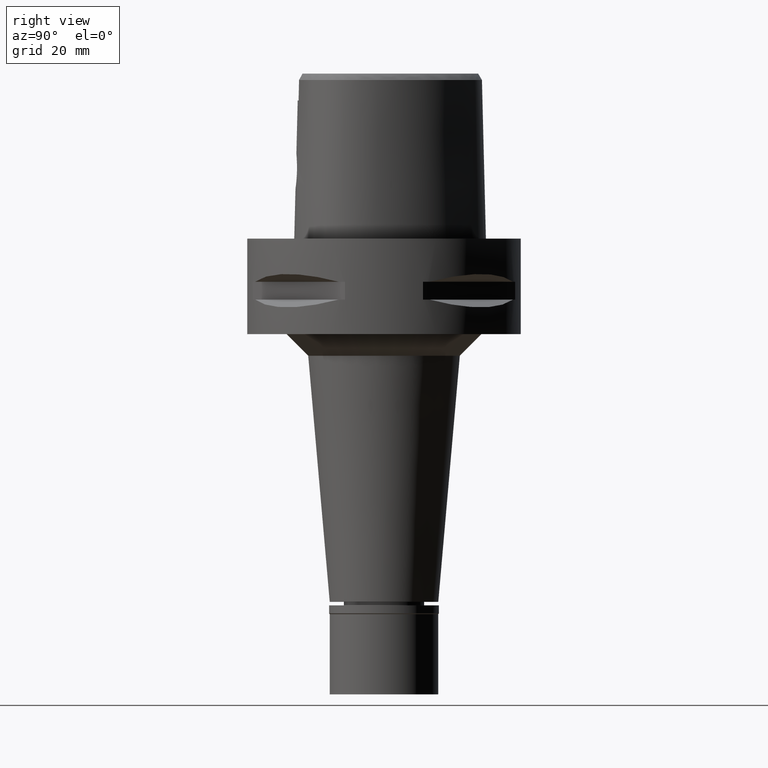
[diagram: clean part render]
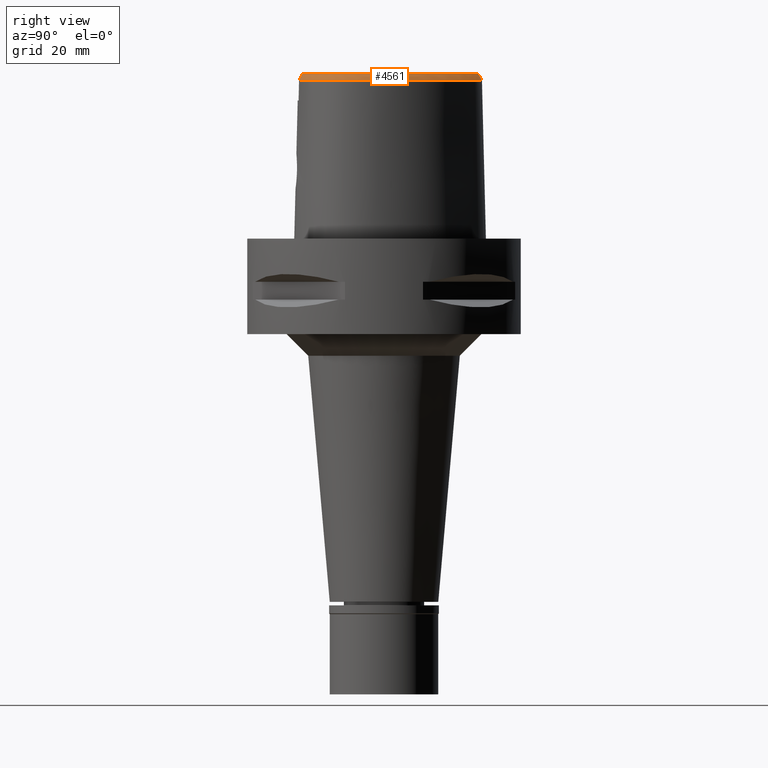
[diagram: same view with one face highlighted and labeled with its STEP entity id]
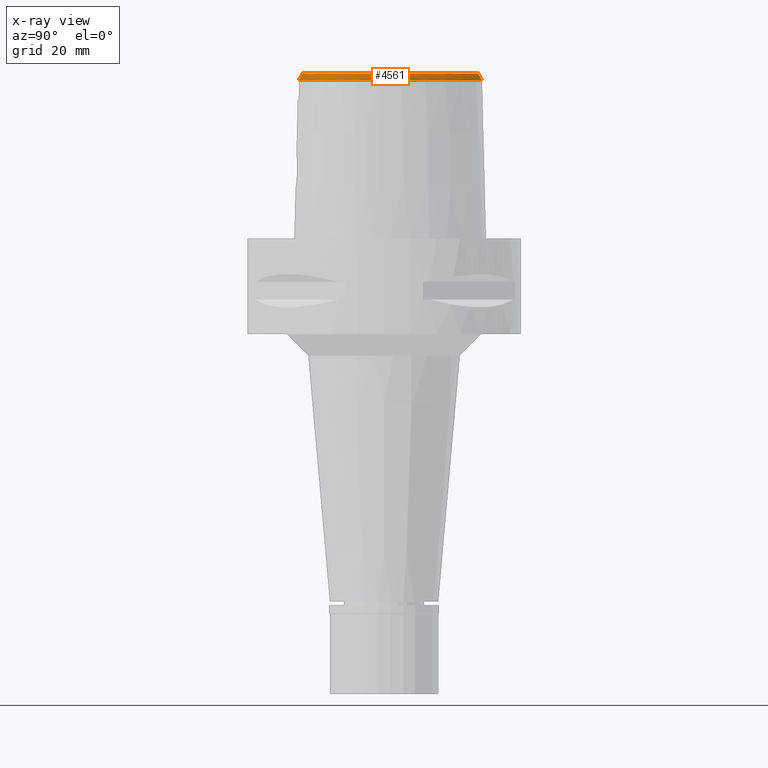
[diagram: x-ray of the same camera — body ghosted, the highlighted face saturated]
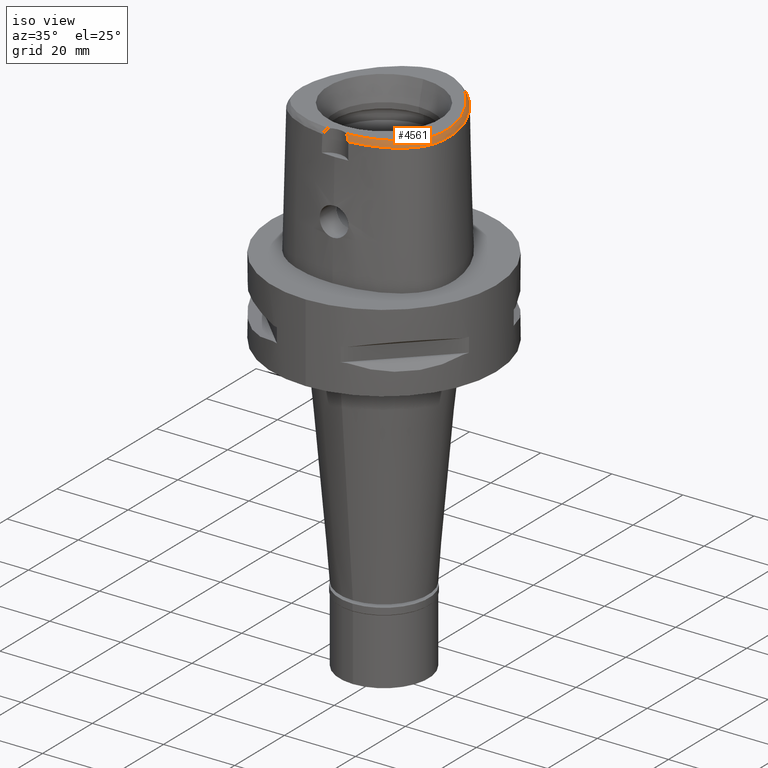
[diagram: same view with one face highlighted and labeled with its STEP entity id]
A machine part, right view. The second image highlights one B-rep face of the part: STEP entity #4561.
The next image is the same camera in x-ray: the body ghosted, the highlighted face saturated — about 0% of this face is hidden behind the body in this view.
A second angle (iso view) of the same face is appended — the face is thin or edge-on in the first view.
In plain terms, the highlighted face is a freeform B-spline surface patch.
Its self-contained STEP definition (entity closure, byte-faithful):
#6 = CARTESIAN_POINT ( 'NONE',  ( 2.974842851752000250, 22.29141342691000105, 36.35241491491999710 ) ) ;
#17 = CARTESIAN_POINT ( 'NONE',  ( 20.23574676372999903, -7.868662442845999472, 37.56374709648999755 ) ) ;
#31 = CARTESIAN_POINT ( 'NONE',  ( 2.198748266315000421, 22.46134228318000225, 36.35241431072999774 ) ) ;
#41 = CARTESIAN_POINT ( 'NONE',  ( 20.93286452998000158, -8.037445738110999827, 36.35241419415999786 ) ) ;
#66 = CARTESIAN_POINT ( 'NONE',  ( 19.19515183040999773, -9.826904119165998708, 38.16941351452000220 ) ) ;
#90 = CARTESIAN_POINT ( 'NONE',  ( 10.15538781006311098, 18.47129526703114522, 36.52186680739941949 ) ) ;
#92 = CARTESIAN_POINT ( 'NONE',  ( 20.37312828463000258, -8.721874436320998569, 36.95808071120999472 ) ) ;
#112 = CARTESIAN_POINT ( 'NONE',  ( 17.90324024157837357, -13.53935104436289372, 36.52186680739941949 ) ) ;
#114 = CARTESIAN_POINT ( 'NONE',  ( 20.17966348624999995, -6.167729458715000668, 38.16941348641999809 ) ) ;
#141 = CARTESIAN_POINT ( 'NONE',  ( 8.732941617278999757, 18.65337847549000116, 37.56374699025000297 ) ) ;
#168 = CARTESIAN_POINT ( 'NONE',  ( 19.50941057958999991, 2.946715820147000287, 37.56374768472000625 ) ) ;
#175 = CARTESIAN_POINT ( 'NONE',  ( 2.065905809703999729, -18.72351597435000059, 38.16941344133000058 ) ) ;
#199 = CARTESIAN_POINT ( 'NONE',  ( 2.087951870860000003, -19.08125731625999677, 37.56374737029999977 ) ) ;
#224 = CARTESIAN_POINT ( 'NONE',  ( 2.269381578122999787, -18.71097469369999899, 38.16941343586000102 ) ) ;
#253 = CARTESIAN_POINT ( 'NONE',  ( 19.26272899268332495, 2.870227893749907278, 37.99999999999666045 ) ) ;
#264 = CARTESIAN_POINT ( 'NONE',  ( 7.997372503649000208, 19.60781613908000054, 36.95808075406999649 ) ) ;
#274 = CARTESIAN_POINT ( 'NONE',  ( 2.635221399208999671, -18.68505318431000006, 38.16941343052999969 ) ) ;
#275 = CARTESIAN_POINT ( 'NONE',  ( 19.98468477322884951, -7.807876343103253625, 37.99999999999519673 ) ) ;
#288 = CARTESIAN_POINT ( 'NONE',  ( 16.79760643951000176, 8.471324335445000742, 38.16941349421999519 ) ) ;
#300 = CARTESIAN_POINT ( 'NONE',  ( 3.518748333297999853, -18.60775588494999866, 38.16941344237999800 ) ) ;
#314 = CARTESIAN_POINT ( 'NONE',  ( 15.46170414963999917, 11.40058555340000090, 37.56374739870999946 ) ) ;
#322 = CARTESIAN_POINT ( 'NONE',  ( 2.663393268739999709, -19.04238078869999740, 37.56374739809000118 ) ) ;
#344 = CARTESIAN_POINT ( 'NONE',  ( 17.62527934276999986, -13.91671344115000153, 36.35241423360999846 ) ) ;
#370 = CARTESIAN_POINT ( 'NONE',  ( 14.16129752551999843, -15.25738823900000085, 38.16941348265999778 ) ) ;
#387 = CARTESIAN_POINT ( 'NONE',  ( 3.451992890747000331, 21.03906640685000085, 38.16941348706999548 ) ) ;
#401 = CARTESIAN_POINT ( 'NONE',  ( 20.91868174871000008, -2.114874987633000192, 36.95808044620000743 ) ) ;
#413 = CARTESIAN_POINT ( 'NONE',  ( -0.5985553733182999991, 21.57070269564000142, 38.16941358703000020 ) ) ;
#422 = CARTESIAN_POINT ( 'NONE',  ( 19.45597212414000055, -9.191065456482000684, 38.16941348683000257 ) ) ;
#434 = CARTESIAN_POINT ( 'NONE',  ( 1.401793166265999702, 22.22299312404000204, 36.95808035355999976 ) ) ;
#446 = CARTESIAN_POINT ( 'NONE',  ( 21.32871516739867701, -4.105831245034494259, 36.52186680739941949 ) ) ;
#448 = CARTESIAN_POINT ( 'NONE',  ( 19.86089169675999955, -10.91966610638999846, 36.35241402981999670 ) ) ;
#476 = CARTESIAN_POINT ( 'NONE',  ( 18.82552655371999961, -11.93799700846000000, 36.95808054173999579 ) ) ;
#500 = CARTESIAN_POINT ( 'NONE',  ( 20.71603420689000075, -8.826925708826001582, 36.35241429835000559 ) ) ;
#526 = CARTESIAN_POINT ( 'NONE',  ( 14.84076497483999901, 12.91328036578999949, 36.95808118665999586 ) ) ;
#547 = B_SPLINE_CURVE_WITH_KNOTS ( 'NONE', 3,
 ( #2004, #4006, #2033, #2055, #3593, #90, #4359, #3206, #858, #2386, #446, #552, #3184, #3158, #4032, #2105, #112, #3262, #2848, #4732, #2413, #4413, #912 ),
 .UNSPECIFIED., .F., .F.,
 ( 4, 1, 1, 1, 1, 1, 1, 1, 1, 1, 1, 1, 1, 1, 1, 1, 1, 1, 1, 1, 4 ),
 ( 0.0000000000000000000, 0.04382683003322194321, 0.08765366006602301474, 0.1314804900989294256, 0.1753073201318358088, 0.2629609801974380767, 0.3506146402631456493, 0.4382683003288531665, 0.5259219603945607391, 0.5697487904274670667, 0.6135756204602682562, 0.6574024504930694457, 0.6793158655094699849, 0.7012292805259757733, 0.7231426955423763125, 0.7450561105587768518, 0.7888829405916832904, 0.8327097706245897291, 0.8765366006573908075, 0.9641902607230773414, 1.000000000000000000 ),
 .UNSPECIFIED. ) ;
#552 = CARTESIAN_POINT ( 'NONE',  ( 21.14970177531404971, -6.717195943319461904, 36.52186680739941949 ) ) ;
#553 = CARTESIAN_POINT ( 'NONE',  ( 12.36653905210999937, 14.82427720241999936, 38.16941344374999545 ) ) ;
#563 = CARTESIAN_POINT ( 'NONE',  ( 3.014775775910999656, -19.00418777225999989, 37.57642508973999895 ) ) ;
#585 = CARTESIAN_POINT ( 'NONE',  ( 3.334361733693000041, -19.26626899416000072, 37.08490021722000307 ) ) ;
#608 = CARTESIAN_POINT ( 'NONE',  ( 2.132043993171000018, -19.79674000006999890, 36.35241522825000260 ) ) ;
#609 = CARTESIAN_POINT ( 'NONE',  ( 0.2185816947241264185, 21.68728795389688813, 38.00000000000073186 ) ) ;
#653 = CARTESIAN_POINT ( 'NONE',  ( 15.76031682222999919, 11.59905775982999998, 36.95808136714000369 ) ) ;
#662 = CARTESIAN_POINT ( 'NONE',  ( 3.632041410732000042, -19.67722132647000066, 36.35241521796000086 ) ) ;
#663 = CARTESIAN_POINT ( 'NONE',  ( 20.15982952132096173, -1.007721426051856994, 38.00000000000159162 ) ) ;
#676 = CARTESIAN_POINT ( 'NONE',  ( 19.37553402254999924, 4.468835533538999094, 36.95808033534000003 ) ) ;
#687 = CARTESIAN_POINT ( 'NONE',  ( 10.50200809265000146, -18.16413051794999944, 36.35241692327999630 ) ) ;
#688 = CARTESIAN_POINT ( 'NONE',  ( 20.38292172607745201, -3.276278498261031569, 37.99999999999698730 ) ) ;
#700 = CARTESIAN_POINT ( 'NONE',  ( 17.51320334548999824, 7.056729789478000114, 38.16941342730000031 ) ) ;
#712 = CARTESIAN_POINT ( 'NONE',  ( 17.12038549522000253, -13.40725297164999930, 37.56374710693000196 ) ) ;
#714 = CARTESIAN_POINT ( 'NONE',  ( 10.48999540691348287, 16.86597469869753496, 37.99999999999941735 ) ) ;
#727 = CARTESIAN_POINT ( 'NONE',  ( -0.6187441997410000338, 21.92853279375000142, 37.56374699506000070 ) ) ;
#738 = CARTESIAN_POINT ( 'NONE',  ( 11.42172981814000110, -17.04453059356999844, 37.56374706089999904 ) ) ;
#751 = CARTESIAN_POINT ( 'NONE',  ( 0.02237540582047000196, 21.59312350621999954, 38.16941350025999924 ) ) ;
#752 = CARTESIAN_POINT ( 'NONE',  ( 3.637738219117000238, -19.56971420299000286, 36.52185956443999970 ) ) ;
#761 = CARTESIAN_POINT ( 'NONE',  ( 17.00744580197999767, -14.49462320075000221, 36.35241413026000146 ) ) ;
#775 = CARTESIAN_POINT ( 'NONE',  ( 6.013209298940999759, 20.36126075105999789, 37.56374730083000202 ) ) ;
#787 = CARTESIAN_POINT ( 'NONE',  ( 20.64094826198999755, -3.264640632160000333, 37.56374712186000409 ) ) ;
#805 = CARTESIAN_POINT ( 'NONE',  ( 0.02372649223501999832, 22.31039325036000065, 36.95808093682000361 ) ) ;
#816 = CARTESIAN_POINT ( 'NONE',  ( 18.89816146815000053, -11.16761073274999916, 37.56374718448999772 ) ) ;
#827 = CARTESIAN_POINT ( 'NONE',  ( 5.164914911368001071, 20.76969461227999858, 37.56374726397999808 ) ) ;
#836 = CARTESIAN_POINT ( 'NONE',  ( 20.54588661210999945, 0.3495157659289999663, 36.95808296599000187 ) ) ;
#858 = CARTESIAN_POINT ( 'NONE',  ( 19.88562079789042514, 4.345879946636847180, 36.52186680739941949 ) ) ;
#860 = CARTESIAN_POINT ( 'NONE',  ( 20.12779444172999987, -9.442371789440999308, 36.95808101937999623 ) ) ;
#872 = EDGE_CURVE ( 'NONE', #3339, #4923, #3026, .T. ) ;
#890 = CARTESIAN_POINT ( 'NONE',  ( 20.76973129015000197, -0.9153422451423999240, 36.95808105719000025 ) ) ;
#912 = CARTESIAN_POINT ( 'NONE',  ( 3.637738219117000238, -19.56971420299000286, 36.52185956443999970 ) ) ;
#913 = CARTESIAN_POINT ( 'NONE',  ( 9.917989564107999811, 18.18050054662999671, 36.95808170605999976 ) ) ;
#940 = CARTESIAN_POINT ( 'NONE',  ( 17.11361895382999876, 8.640725359465998068, 37.56374723407999738 ) ) ;
#996 = CARTESIAN_POINT ( 'NONE',  ( 16.36283630828387459, -13.76236604535341890, 37.99999999999447908 ) ) ;
#1018 = CARTESIAN_POINT ( 'NONE',  ( 5.894487344450284105, 20.13186406532522454, 37.99999999999013767 ) ) ;
#1030 = CARTESIAN_POINT ( 'NONE',  ( 19.54673487616999594, 1.497096046667000246, 38.16941309245999747 ) ) ;
#1045 = CARTESIAN_POINT ( 'NONE',  ( 11.46587147800505235, 15.92717600803452882, 37.99999999999688072 ) ) ;
#1064 = CARTESIAN_POINT ( 'NONE',  ( 11.64961156618999993, 16.10867751014999882, 37.56374814839000464 ) ) ;
#1073 = CARTESIAN_POINT ( 'NONE',  ( 15.15359882462999863, -15.03603512539999976, 37.56374738893000398 ) ) ;
#1075 = CARTESIAN_POINT ( 'NONE',  ( 12.44125753246675359, 14.89118158853383989, 37.99999999999811706 ) ) ;
#1087 = CARTESIAN_POINT ( 'NONE',  ( 18.81125986178999909, 5.911183584566000349, 36.95808094008000211 ) ) ;
#1099 = CARTESIAN_POINT ( 'NONE',  ( 15.87993102237000187, -14.49961560620000078, 37.56374716796000257 ) ) ;
#1100 = CARTESIAN_POINT ( 'NONE',  ( 17.91165267839327768, -12.13575389397936100, 38.00000000000002132 ) ) ;
#1111 = CARTESIAN_POINT ( 'NONE',  ( 6.891440295765999480, 19.87656040022000070, 37.56374713218000494 ) ) ;
#1123 = CARTESIAN_POINT ( 'NONE',  ( 14.53685643401999883, -15.86840201252000249, 36.95808104500999747 ) ) ;
#1134 = CARTESIAN_POINT ( 'NONE',  ( 2.682287482605000051, -18.78036330228999873, 38.00000000000000000 ) ) ;
#1138 = CARTESIAN_POINT ( 'NONE',  ( 5.848383106901000161, 20.04278063221000039, 38.16941346828999571 ) ) ;
#1151 = CARTESIAN_POINT ( 'NONE',  ( 14.72463588826999903, -16.17390889927000330, 36.35241482618000930 ) ) ;
#1165 = CARTESIAN_POINT ( 'NONE',  ( 7.073533172900999588, 20.18548462437999902, 36.95808073055999898 ) ) ;
#1174 = CARTESIAN_POINT ( 'NONE',  ( 19.54302089219000038, -10.75355636414999871, 36.95808054140000110 ) ) ;
#1187 = CARTESIAN_POINT ( 'NONE',  ( 0.6675422700972000190, 21.93153213744000141, 37.56374706631000038 ) ) ;
#1196 = CARTESIAN_POINT ( 'NONE',  ( 18.67702971514999888, -12.74075470416999956, 36.35241493799999546 ) ) ;
#1213 = CARTESIAN_POINT ( 'NONE',  ( 2.887385068118999865, 21.94360657154999927, 36.95808110112999856 ) ) ;
#1224 = CARTESIAN_POINT ( 'NONE',  ( 19.84322848460999822, 0.2060987132914000042, 38.16941317031999859 ) ) ;
#1246 = CARTESIAN_POINT ( 'NONE',  ( 21.01748927547999557, -4.315022003267999118, 36.95808083370000219 ) ) ;
#1273 = CARTESIAN_POINT ( 'NONE',  ( 20.62188204261000024, -5.293062898819000495, 37.56374739670000196 ) ) ;
#1301 = CARTESIAN_POINT ( 'NONE',  ( 13.16791197877000030, 15.54184216694999954, 36.35241520467000242 ) ) ;
#1323 = CARTESIAN_POINT ( 'NONE',  ( 14.55190148123999982, 12.70086612206999988, 37.56374732315000387 ) ) ;
#1378 = CARTESIAN_POINT ( 'NONE',  ( 10.17751632998204236, -17.24426134458966686, 37.99999999999598543 ) ) ;
#1393 = CARTESIAN_POINT ( 'NONE',  ( -1.645325546739000130E-11, 22.56201468012000078, 36.52186680743999858 ) ) ;
#1401 = CARTESIAN_POINT ( 'NONE',  ( 19.78323211893065192, -8.541156231035676782, 37.99999999999571543 ) ) ;
#1405 = VERTEX_POINT ( 'NONE', #1134 ) ;
#1414 = CARTESIAN_POINT ( 'NONE',  ( 8.519007759532998492, 18.36560377704999780, 38.16941358890999680 ) ) ;
#1429 = CARTESIAN_POINT ( 'NONE',  ( 15.72078707640399386, -14.29615620309059310, 37.99999999999869971 ) ) ;
#1442 = CARTESIAN_POINT ( 'NONE',  ( 17.42963146813999842, 8.810126383485998858, 36.95808097393999958 ) ) ;
#1457 = CARTESIAN_POINT ( 'NONE',  ( 12.79431207133999848, -17.22003081736999874, 36.35241414122999970 ) ) ;
#1458 = CARTESIAN_POINT ( 'NONE',  ( 13.40430406168277067, 13.76274261013427136, 37.99999999999808153 ) ) ;
#1475 = CARTESIAN_POINT ( 'NONE',  ( 16.05892949481999565, 11.79752996626000083, 36.35241533557000082 ) ) ;
#1485 = CARTESIAN_POINT ( 'NONE',  ( 15.56263567019999883, -15.62518025998999782, 36.35241529864000398 ) ) ;
#1486 = CARTESIAN_POINT ( 'NONE',  ( 1.325020189552918115, 21.61081414408923962, 37.99999999999540989 ) ) ;
#1496 = CARTESIAN_POINT ( 'NONE',  ( 6.342861683018999663, 20.99822098876999732, 36.35241496591000043 ) ) ;
#1505 = CARTESIAN_POINT ( 'NONE',  ( 4.853864955881999954, -19.53150406553999829, 36.35241434725999454 ) ) ;
#1531 = CARTESIAN_POINT ( 'NONE',  ( 17.91286980124000294, -13.09292506070999984, 36.95808076459000091 ) ) ;
#1555 = CARTESIAN_POINT ( 'NONE',  ( 4.701356478209000045, -18.46669877033999896, 38.16941353189999830 ) ) ;
#1566 = CARTESIAN_POINT ( 'NONE',  ( 2.066094637232999798, 21.75643309858999785, 37.56374712734999832 ) ) ;
#1576 = CARTESIAN_POINT ( 'NONE',  ( 18.90727928305000205, -10.42133687968000011, 38.16941356454999834 ) ) ;
#1590 = CARTESIAN_POINT ( 'NONE',  ( -0.6389330261637998776, 22.28636289185999786, 36.95808040309999853 ) ) ;
#1599 = CARTESIAN_POINT ( 'NONE',  ( 20.06066098019000066, -1.022742055717000165, 38.16941348069000384 ) ) ;
#1628 = CARTESIAN_POINT ( 'NONE',  ( 21.24762489069000182, -6.297730241303000298, 36.35241478973000540 ) ) ;
#1650 = CARTESIAN_POINT ( 'NONE',  ( 20.97974076079000127, -5.316216864821000421, 36.95808136232000152 ) ) ;
#1673 = CARTESIAN_POINT ( 'NONE',  ( 20.53565062105999672, -6.211063052910999360, 37.56374725418999816 ) ) ;
#1701 = CARTESIAN_POINT ( 'NONE',  ( 7.600450401896999608, 19.01048938302000124, 38.16941352997000081 ) ) ;
#1723 = CARTESIAN_POINT ( 'NONE',  ( 19.14189532269000082, 6.049901747466000401, 36.35241466025999557 ) ) ;
#1752 = CARTESIAN_POINT ( 'NONE',  ( 8.578848111817377387, 18.44609846599081138, 37.99999999999710809 ) ) ;
#1779 = CARTESIAN_POINT ( 'NONE',  ( 8.936919536467087255, -17.64796721715518402, 37.99999999999105427 ) ) ;
#1805 = CARTESIAN_POINT ( 'NONE',  ( 2.793931140749999820, -18.85133158894999994, 37.86540512120999580 ) ) ;
#1806 = CARTESIAN_POINT ( 'NONE',  ( 15.24661770199737632, 11.25762885478421538, 37.99999999999798206 ) ) ;
#1818 = CARTESIAN_POINT ( 'NONE',  ( 8.195833554525000508, 19.90647951711000019, 36.35241436611999433 ) ) ;
#1831 = CARTESIAN_POINT ( 'NONE',  ( 7.837966937669001766, -18.95589340124000088, 36.35241733079000426 ) ) ;
#1832 = CARTESIAN_POINT ( 'NONE',  ( 18.67722910597911223, -11.03372143227727342, 37.99999999999814548 ) ) ;
#1845 = CARTESIAN_POINT ( 'NONE',  ( 20.19436538497999933, 3.159097998308999955, 36.35241641572000049 ) ) ;
#1858 = CARTESIAN_POINT ( 'NONE',  ( 13.80352661008999959, -16.70685372352000186, 36.35241425817000049 ) ) ;
#1859 = CARTESIAN_POINT ( 'NONE',  ( 19.28677546797063513, -9.867757137506577791, 37.99999999999479883 ) ) ;
#1872 = CARTESIAN_POINT ( 'NONE',  ( 16.93455260468999768, 10.41035510208999959, 36.35241434395000226 ) ) ;
#1881 = CARTESIAN_POINT ( 'NONE',  ( 11.55822547822000068, -17.37611659444000267, 36.95808056032999644 ) ) ;
#1904 = CARTESIAN_POINT ( 'NONE',  ( 17.37829927963000287, -12.61467649657000045, 38.16941352825999445 ) ) ;
#1929 = CARTESIAN_POINT ( 'NONE',  ( 7.583073657902000164, -17.91083680367999875, 38.16941322513000756 ) ) ;
#1946 = CARTESIAN_POINT ( 'NONE',  ( 3.667893128496999999, 21.72305563862000000, 36.95808101787999789 ) ) ;
#1956 = B_SPLINE_CURVE_WITH_KNOTS ( 'NONE', 3,
 ( #3837, #609, #3781, #1486, #3753, #3011, #4579, #3345, #4549, #1018, #2953, #2568, #1752, #3807, #714, #1045, #1075, #1458, #4193, #1806, #3034, #4602, #4494, #2596, #4137, #253, #4518, #4170, #663, #2619, #688, #3369, #2262, #4217, #2214, #275, #1401, #3318, #1859, #2238, #1832, #2159, #1100, #4937, #3394, #996, #1429, #2981, #4968, #3424, #4995, #4885, #1378, #1779, #2931, #4911, #2645, #3724, #2543, #4110 ),
 .UNSPECIFIED., .F., .F.,
 ( 4, 1, 1, 1, 1, 1, 1, 1, 1, 1, 1, 1, 1, 1, 1, 1, 1, 1, 1, 1, 1, 1, 1, 1, 1, 1, 1, 1, 1, 1, 1, 1, 1, 1, 1, 1, 1, 1, 1, 1, 1, 1, 1, 1, 1, 1, 1, 1, 1, 1, 1, 1, 1, 1, 1, 1, 1, 4 ),
 ( 0.0000000000000000000, 0.01775854187129999318, 0.03551708374169992855, 0.05327562561200005486, 0.07103416748239999023, 0.08879270935270000553, 0.1065512512231000519, 0.1243097930933999562, 0.1420683349638000026, 0.1598268768341000179, 0.1775854187044000332, 0.1953439605747999686, 0.2131025024450999839, 0.2308610443155000302, 0.2486195861857999345, 0.2663781280563000120, 0.2841366699266000273, 0.3018952117970000737, 0.3196537536672999780, 0.3374122955377000244, 0.3551708374080000397, 0.3729293792782999439, 0.3906879211486999903, 0.4084464630190000056, 0.4262050048894000520, 0.4439635467596999563, 0.4617220886301000027, 0.4794806305004000180, 0.4972391723707999533, 0.5149977142410999686, 0.5327562561113999839, 0.5505147979818000303, 0.5682733398521000456, 0.5860318817224999810, 0.6037904235927999963, 0.6215489654632000427, 0.6393075073334999470, 0.6570660492038999934, 0.6748245910742000087, 0.6925831329445000240, 0.7103416748149000703, 0.7281002166851999746, 0.7458587585556000210, 0.7636173004259000363, 0.7813758422962999717, 0.7991343841665999870, 0.8168929260370000334, 0.8346514679073000487, 0.8524100097776999840, 0.8701685516479999993, 0.8879270935183000146, 0.9056856353886799660, 0.9234441772589799813, 0.9412027191293600437, 0.9589612609997000270, 0.9767198028700500023, 0.9944783447403919840, 1.000000000000000000 ),
 .UNSPECIFIED. ) ;
#1959 = CARTESIAN_POINT ( 'NONE',  ( 19.52271337535000129, -9.972956799013999785, 37.56374718179999661 ) ) ;
#1972 = CARTESIAN_POINT ( 'NONE',  ( 2.712469500852999982, 21.24799286084000016, 38.16941347353999703 ) ) ;
#1983 = CARTESIAN_POINT ( 'NONE',  ( 20.05255918647999991, -7.004336500086999706, 38.16941355330000363 ) ) ;
#2004 = CARTESIAN_POINT ( 'NONE',  ( -1.645325546739000130E-11, 22.56201468012000078, 36.52186680743999858 ) ) ;
#2006 = CARTESIAN_POINT ( 'NONE',  ( 20.89163775587000060, -6.254396647106999829, 36.95808102195999822 ) ) ;
#2025 = B_SPLINE_CURVE_WITH_KNOTS ( 'NONE', 3,
 ( #2495, #2930, #585, #563, #1805, #3722 ),
 .UNSPECIFIED., .F., .F.,
 ( 4, 1, 1, 4 ),
 ( 0.0000000000000000000, 0.3333333333333000081, 0.6666666666667000474, 1.000000000000000000 ),
 .UNSPECIFIED. ) ;
#2033 = CARTESIAN_POINT ( 'NONE',  ( 2.376843874103260923, 22.39422497744484986, 36.52186680739941949 ) ) ;
#2035 = CARTESIAN_POINT ( 'NONE',  ( 18.39567065510999910, -12.51835129892000076, 36.95808111571999888 ) ) ;
#2055 = CARTESIAN_POINT ( 'NONE',  ( 4.757642236485114751, 21.67478320247149171, 36.52186680739941949 ) ) ;
#2056 = CARTESIAN_POINT ( 'NONE',  ( 18.23645296591000076, -11.52871767782000134, 38.16941356448999301 ) ) ;
#2079 = CARTESIAN_POINT ( 'NONE',  ( 10.14652527602999932, 18.45681326354999996, 36.35241587149999987 ) ) ;
#2105 = CARTESIAN_POINT ( 'NONE',  ( 18.90964962508311231, -12.28759713487932892, 36.52186680739941949 ) ) ;
#2106 = CARTESIAN_POINT ( 'NONE',  ( 11.39451823327999946, 15.85669209117999934, 38.16941313915999956 ) ) ;
#2159 = CARTESIAN_POINT ( 'NONE',  ( 18.31883910943081517, -11.58595831187914804, 37.99999999999335643 ) ) ;
#2201 = CARTESIAN_POINT ( 'NONE',  ( 15.12962846844000175, 13.12569460951000089, 36.35241505017999941 ) ) ;
#2213 = CARTESIAN_POINT ( 'NONE',  ( 9.214668357398000609, -18.58299666362999858, 36.35241854071999512 ) ) ;
#2214 = CARTESIAN_POINT ( 'NONE',  ( 20.15127154947508359, -7.022178451341208216, 37.99999999999802469 ) ) ;
#2225 = CARTESIAN_POINT ( 'NONE',  ( 10.66447579689999969, 17.05639973391000197, 37.56374820110999480 ) ) ;
#2234 = VERTEX_POINT ( 'NONE', #752 ) ;
#2237 = CARTESIAN_POINT ( 'NONE',  ( 16.29655412693000116, -13.68707146460999979, 38.16941355421999305 ) ) ;
#2238 = CARTESIAN_POINT ( 'NONE',  ( 18.99619228226755396, -10.46780014453288743, 37.99999999999511857 ) ) ;
#2249 = CARTESIAN_POINT ( 'NONE',  ( 14.16159027934999948, 14.37746637665000016, 36.35241380878999706 ) ) ;
#2261 = CARTESIAN_POINT ( 'NONE',  ( 17.64558454043999802, -12.85380077864000015, 37.56374714643000345 ) ) ;
#2262 = CARTESIAN_POINT ( 'NONE',  ( 20.36412151360649858, -5.276385427453883281, 37.99999999999705835 ) ) ;
#2284 = CARTESIAN_POINT ( 'NONE',  ( 16.53351801861000325, -13.95625537665000060, 37.56374707957000680 ) ) ;
#2309 = CARTESIAN_POINT ( 'NONE',  ( 18.18015506205000165, -13.33204934278000131, 36.35241438275999570 ) ) ;
#2324 = CARTESIAN_POINT ( 'NONE',  ( 5.458314182127999459, 21.42416229032000174, 36.35241482671000313 ) ) ;
#2338 = CARTESIAN_POINT ( 'NONE',  ( 20.99917628764000099, -3.248483341277000225, 36.95808070593000139 ) ) ;
#2355 = CARTESIAN_POINT ( 'NONE',  ( -0.4346841006927000262, 22.65619097014000261, 36.35241431348999441 ) ) ;
#2367 = CARTESIAN_POINT ( 'NONE',  ( 19.88718788059999909, -7.784270795213999783, 38.16941354765000227 ) ) ;
#2378 = CARTESIAN_POINT ( 'NONE',  ( 5.018215275988000101, 20.44246077325000144, 38.16941348260999689 ) ) ;
#2386 = CARTESIAN_POINT ( 'NONE',  ( 21.07429999883153826, -0.4408303635840944978, 36.52186680739941949 ) ) ;
#2388 = CARTESIAN_POINT ( 'NONE',  ( 20.89721567586000006, 0.4212242922478000029, 36.35241786382000129 ) ) ;
#2413 = CARTESIAN_POINT ( 'NONE',  ( 7.300578979383361755, -19.07170738130879073, 36.52186680739941949 ) ) ;
#2415 = CARTESIAN_POINT ( 'NONE',  ( 21.35740431330000177, -3.232326050394000116, 36.35241429000000579 ) ) ;
#2443 = CARTESIAN_POINT ( 'NONE',  ( 17.83295253505000133, -12.07354448842000139, 38.16941347116999594 ) ) ;
#2464 = CARTESIAN_POINT ( 'NONE',  ( 19.03862293632999680, 4.346134075036000688, 37.56374696670000191 ) ) ;
#2489 = CARTESIAN_POINT ( 'NONE',  ( 20.58861462112999874, 1.764715943488999850, 36.35241862098000354 ) ) ;
#2495 = CARTESIAN_POINT ( 'NONE',  ( 3.637738219117000238, -19.56971420299000286, 36.52185956443999970 ) ) ;
#2543 = CARTESIAN_POINT ( 'NONE',  ( 2.845098933833402732, -18.76733062685941533, 37.99999999999683808 ) ) ;
#2568 = CARTESIAN_POINT ( 'NONE',  ( 7.655962789343603525, 19.09402979099492015, 37.99999999999594991 ) ) ;
#2582 = CARTESIAN_POINT ( 'NONE',  ( 18.14998893997999829, 5.633747258765999355, 38.16941349972999831 ) ) ;
#2595 = CARTESIAN_POINT ( 'NONE',  ( 12.48692679836999986, -16.57206911691999807, 37.56374708247000171 ) ) ;
#2596 = CARTESIAN_POINT ( 'NONE',  ( 18.24247239569132972, 5.672548708072024937, 37.99999999999890576 ) ) ;
#2597 = CARTESIAN_POINT ( 'NONE',  ( -3.470663397229000302E-11, 21.68728795390000030, 38.00000000000000000 ) ) ;
#2609 = CARTESIAN_POINT ( 'NONE',  ( 16.62690208724999863, 10.22620379182000150, 36.95808074005000066 ) ) ;
#2618 = CARTESIAN_POINT ( 'NONE',  ( 10.26343627001000058, -17.48782717059999925, 37.56374781910999872 ) ) ;
#2619 = CARTESIAN_POINT ( 'NONE',  ( 20.30478359882114248, -2.175347700950460261, 37.99999999999803890 ) ) ;
#2632 = CARTESIAN_POINT ( 'NONE',  ( 19.16693317690000242, 2.840524731067000097, 38.16941331922000558 ) ) ;
#2644 = CARTESIAN_POINT ( 'NONE',  ( 16.32182217404999847, -15.06455641759000130, 36.35241446408999622 ) ) ;
#2645 = CARTESIAN_POINT ( 'NONE',  ( 4.715576077242102038, -18.56597918135167902, 37.99999999998752287 ) ) ;
#2655 = CARTESIAN_POINT ( 'NONE',  ( 0.02440203544229999771, 22.66902812241999854, 36.35241465509999870 ) ) ;
#2660 = CARTESIAN_POINT ( 'NONE',  ( -1.645325546739000130E-11, 22.56201468012000078, 36.52186680743999858 ) ) ;
#2668 = CARTESIAN_POINT ( 'NONE',  ( 13.46193079200000042, -16.07624043387000157, 37.56374711343000428 ) ) ;
#2685 = CARTESIAN_POINT ( 'NONE',  ( -0.6591218525865000233, 22.64419298996999785, 36.35241381112999903 ) ) ;
#2696 = CARTESIAN_POINT ( 'NONE',  ( 6.245388689763000656, -18.57033112394000085, 37.56374708709000032 ) ) ;
#2711 = CARTESIAN_POINT ( 'NONE',  ( 0.6450215750979000351, 21.57358649220000046, 38.16941355937999703 ) ) ;
#2722 = CARTESIAN_POINT ( 'NONE',  ( 20.26402332443000276, -5.269908932816999680, 38.16941343106999796 ) ) ;
#2736 = CARTESIAN_POINT ( 'NONE',  ( 0.7125836600957000666, 22.64742342793000063, 36.35241408016999998 ) ) ;
#2750 = CARTESIAN_POINT ( 'NONE',  ( 20.56182350229000022, -2.150027702190999701, 37.56374701312000042 ) ) ;
#2766 = CARTESIAN_POINT ( 'NONE',  ( 2.799927284485999923, 21.59579971619000105, 37.56374728732999557 ) ) ;
#2775 = CARTESIAN_POINT ( 'NONE',  ( 19.12006334761999682, -12.14263667378000022, 36.35241403036000207 ) ) ;
#2795 = CARTESIAN_POINT ( 'NONE',  ( 21.37607382678000079, -4.318327875248000325, 36.35241449203000030 ) ) ;
#2821 = CARTESIAN_POINT ( 'NONE',  ( 19.20489024557999969, -11.35349432644999901, 36.95808085550999778 ) ) ;
#2848 = CARTESIAN_POINT ( 'NONE',  ( 14.22011350746664249, -16.41829354688333709, 36.52186680739941949 ) ) ;
#2849 = CARTESIAN_POINT ( 'NONE',  ( 10.42223805417999927, 16.79202543550999849, 38.16941311869000231 ) ) ;
#2853 = EDGE_CURVE ( 'NONE', #3339, #2234, #547, .T. ) ;
#2872 = CARTESIAN_POINT ( 'NONE',  ( 12.90078766987999970, 15.30265384543999829, 36.95808128435999862 ) ) ;
#2930 = CARTESIAN_POINT ( 'NONE',  ( 3.538637315978999887, -19.46462000260999758, 36.71619497650999620 ) ) ;
#2931 = CARTESIAN_POINT ( 'NONE',  ( 7.606839420237573535, -18.00827588386176004, 37.99999999999720046 ) ) ;
#2952 = CARTESIAN_POINT ( 'NONE',  ( 2.317843419947999806, -19.42618809657000156, 36.95808133291000530 ) ) ;
#2953 = CARTESIAN_POINT ( 'NONE',  ( 6.760281394351507878, 19.65404668910018771, 37.99999999999480593 ) ) ;
#2968 = CARTESIAN_POINT ( 'NONE',  ( 9.160809332773000691, 19.22892787236999723, 36.35241379292000374 ) ) ;
#2981 = CARTESIAN_POINT ( 'NONE',  ( 15.00628712263345221, -14.82385870794839988, 37.99999999999199929 ) ) ;
#2998 = CARTESIAN_POINT ( 'NONE',  ( 17.74564398244999808, 8.979527407506999737, 36.35241471378999734 ) ) ;
#3010 = CARTESIAN_POINT ( 'NONE',  ( 13.63272870104999868, -16.39154707869000305, 36.95808068579999883 ) ) ;
#3011 = CARTESIAN_POINT ( 'NONE',  ( 2.736932690727418294, 21.34527940056959139, 37.99999999999574385 ) ) ;
#3023 = CARTESIAN_POINT ( 'NONE',  ( 14.26303798763000152, 12.48845187834000114, 38.16941345963000032 ) ) ;
#3026 = LINE ( 'NONE', #1393, #3658 ) ;
#3033 = CARTESIAN_POINT ( 'NONE',  ( 14.34907697977000041, -15.56289512575999900, 37.56374726383999985 ) ) ;
#3034 = CARTESIAN_POINT ( 'NONE',  ( 16.09765529146816831, 9.909410920132508238, 37.99999999999626965 ) ) ;
#3045 = CARTESIAN_POINT ( 'NONE',  ( 1.999767822691999930, 21.40397850629999965, 38.16941353567000306 ) ) ;
#3056 = CARTESIAN_POINT ( 'NONE',  ( 6.381147874053000102, -19.27448427815000187, 36.35241415867000114 ) ) ;
#3070 = CARTESIAN_POINT ( 'NONE',  ( 1.446421204071999922, 22.57885201906999839, 36.35241373279000499 ) ) ;
#3084 = CARTESIAN_POINT ( 'NONE',  ( 16.86793857145000075, -13.15252273689999996, 38.16941354358999661 ) ) ;
#3111 = CARTESIAN_POINT ( 'NONE',  ( 9.112565546064999467, -18.23927194556999964, 36.95808339404999998 ) ) ;
#3124 = CARTESIAN_POINT ( 'NONE',  ( 2.132421451773999888, 22.10888769088999695, 36.95808071903999803 ) ) ;
#3135 = CARTESIAN_POINT ( 'NONE',  ( 20.46370560052999821, -9.568024955920000352, 36.35241478565000506 ) ) ;
#3149 = CARTESIAN_POINT ( 'NONE',  ( 6.709347418631000259, 19.56763617606999972, 38.16941353378999935 ) ) ;
#3158 = CARTESIAN_POINT ( 'NONE',  ( 20.09619608768981180, -10.23243839430397628, 36.52186680739941949 ) ) ;
#3159 = CARTESIAN_POINT ( 'NONE',  ( 21.12426644513000085, -0.8616423398552999213, 36.35241484544000201 ) ) ;
#3184 = CARTESIAN_POINT ( 'NONE',  ( 20.67704204633615461, -8.734985285293303647, 36.52186680739941949 ) ) ;
#3186 = CARTESIAN_POINT ( 'NONE',  ( 21.33759947896999876, -5.339370830822999459, 36.35241532794000108 ) ) ;
#3206 = CARTESIAN_POINT ( 'NONE',  ( 17.27359236348665661, 9.972912859139134056, 36.52186680739941949 ) ) ;
#3208 = CARTESIAN_POINT ( 'NONE',  ( 20.41519613516999954, -0.9690421504294999266, 37.56374726893999849 ) ) ;
#3235 = CARTESIAN_POINT ( 'NONE',  ( 20.65890472418999835, -4.311716131287999687, 37.56374717536000674 ) ) ;
#3262 = CARTESIAN_POINT ( 'NONE',  ( 16.39211273426472459, -14.95758104715835834, 36.52186680739941949 ) ) ;
#3263 = CARTESIAN_POINT ( 'NONE',  ( 11.90470489910000040, 16.36066292913000098, 36.95808315760999818 ) ) ;
#3318 = CARTESIAN_POINT ( 'NONE',  ( 19.54993126782149204, -9.226212439886005257, 37.99999999999601386 ) ) ;
#3339 = VERTEX_POINT ( 'NONE', #2660 ) ;
#3344 = CARTESIAN_POINT ( 'NONE',  ( 2.293612499036000063, -19.06858139513999717, 37.56374738438000094 ) ) ;
#3345 = CARTESIAN_POINT ( 'NONE',  ( 4.255661039972457260, 20.86618068830161477, 37.99999999999078426 ) ) ;
#3356 = ORIENTED_EDGE ( 'NONE', *, *, #872, .T. ) ;
#3358 = CARTESIAN_POINT ( 'NONE',  ( 18.48062440088000002, 5.772465421666000296, 37.56374721989999443 ) ) ;
#3369 = CARTESIAN_POINT ( 'NONE',  ( 20.40062138794564817, -4.309334958867639287, 38.00000000000136424 ) ) ;
#3381 = CARTESIAN_POINT ( 'NONE',  ( 19.85188798229000184, 3.052906909228000121, 36.95808205022000692 ) ) ;
#3385 = DIRECTION ( 'NONE',  ( -1.062748356836013268E-11, -0.5092834681090075977, 0.8605988316927122295 ) ) ;
#3393 = CARTESIAN_POINT ( 'NONE',  ( 12.33323416187999833, -16.24808826670000172, 38.16941355308999562 ) ) ;
#3394 = CARTESIAN_POINT ( 'NONE',  ( 16.93855157778130760, -13.22377441788924024, 37.99999999999106137 ) ) ;
#3410 = CARTESIAN_POINT ( 'NONE',  ( 18.70171185010999793, 4.223432616532000416, 38.16941359805999667 ) ) ;
#3423 = CARTESIAN_POINT ( 'NONE',  ( 2.691565138271000190, -19.39970839309999917, 36.95808136565000268 ) ) ;
#3424 = CARTESIAN_POINT ( 'NONE',  ( 13.33890749495513006, -15.84912955619422981, 37.99999999999434408 ) ) ;
#3435 = CARTESIAN_POINT ( 'NONE',  ( 0.6900629650963999717, 22.28947778269000324, 36.95808057323999662 ) ) ;
#3445 = CARTESIAN_POINT ( 'NONE',  ( 4.803028796658000310, -19.17656896714000325, 36.95808074213999816 ) ) ;
#3467 = CARTESIAN_POINT ( 'NONE',  ( 6.313268281907999935, -18.92240770104000092, 36.95808062288000428 ) ) ;
#3496 = CARTESIAN_POINT ( 'NONE',  ( 3.594277051588000038, -19.32073284595999851, 36.95808129275999931 ) ) ;
#3511 = CARTESIAN_POINT ( 'NONE',  ( 3.775843247372000278, 22.06505025450000090, 36.35241478328000397 ) ) ;
#3521 = CARTESIAN_POINT ( 'NONE',  ( 18.53098975981999885, -11.73335734313999978, 37.56374705312000373 ) ) ;
#3534 = CARTESIAN_POINT ( 'NONE',  ( 4.347653678098999386, 21.10755350863000146, 37.56374712376999980 ) ) ;
#3545 = CARTESIAN_POINT ( 'NONE',  ( 19.68731644010999915, -8.511771891310999649, 38.16941353693999872 ) ) ;
#3567 = CARTESIAN_POINT ( 'NONE',  ( 20.40546346956999813, -7.068122846855000141, 37.56374708195000522 ) ) ;
#3593 = CARTESIAN_POINT ( 'NONE',  ( 7.108589361577477561, 20.52412316394847736, 36.52186680739941949 ) ) ;
#3595 = CARTESIAN_POINT ( 'NONE',  ( 19.79188328292999799, -9.316718622960999951, 37.56374725311000162 ) ) ;
#3607 = EDGE_LOOP ( 'NONE', ( #4036, #3356, #3662, #3945 ) ) ;
#3617 = CARTESIAN_POINT ( 'NONE',  ( 20.75836775265999989, -7.131909193622999688, 36.95808061060999705 ) ) ;
#3643 = CARTESIAN_POINT ( 'NONE',  ( 15.16309147706000182, 11.20211334697000005, 38.16941343028999967 ) ) ;
#3658 = VECTOR ( 'NONE', #3385, 1000.000000000000227 ) ;
#3662 = ORIENTED_EDGE ( 'NONE', *, *, #4027, .T. ) ;
#3673 = CARTESIAN_POINT ( 'NONE',  ( 9.460918140260998754, 17.62787511276999908, 38.16941337518000665 ) ) ;
#3699 = FACE_OUTER_BOUND ( 'NONE', #3607, .T. ) ;
#3722 = CARTESIAN_POINT ( 'NONE',  ( 2.682287482605000051, -18.78036330228999873, 38.00000000000000000 ) ) ;
#3724 = CARTESIAN_POINT ( 'NONE',  ( 3.529311563348512593, -18.70747079910031019, 37.99999999999567990 ) ) ;
#3753 = CARTESIAN_POINT ( 'NONE',  ( 2.018320379028101463, 21.50256508436266856, 37.99999999999842260 ) ) ;
#3768 = CARTESIAN_POINT ( 'NONE',  ( 8.946875475026001112, 18.94115317392999742, 36.95808039158000469 ) ) ;
#3779 = CARTESIAN_POINT ( 'NONE',  ( 10.14415035869000015, -17.14967549693000137, 38.16941326703000215 ) ) ;
#3781 = CARTESIAN_POINT ( 'NONE',  ( 0.6513209347955878359, 21.67370899611608337, 38.00000000000238032 ) ) ;
#3796 = CARTESIAN_POINT ( 'NONE',  ( 9.689453852184000127, 17.90418782970000322, 37.56374754061999965 ) ) ;
#3806 = CARTESIAN_POINT ( 'NONE',  ( 16.77048191029999913, -14.22543928870000052, 36.95808060491000191 ) ) ;
#3807 = CARTESIAN_POINT ( 'NONE',  ( 9.524842839488691482, 17.70516372195016430, 37.99999999999702993 ) ) ;
#3823 = CARTESIAN_POINT ( 'NONE',  ( 12.63366336099999998, 15.06346552393000060, 37.56374736405000192 ) ) ;
#3836 = CARTESIAN_POINT ( 'NONE',  ( 13.29113288296000128, -15.76093378904000097, 38.16941354106999995 ) ) ;
#3837 = CARTESIAN_POINT ( 'NONE',  ( -3.470663397229000302E-11, 21.68728795390000030, 38.00000000000000000 ) ) ;
#3858 = CARTESIAN_POINT ( 'NONE',  ( 17.37283241899000075, -13.66198320640000041, 36.95808067026999311 ) ) ;
#3870 = CARTESIAN_POINT ( 'NONE',  ( -0.4211465746477000005, 22.29796562525000070, 36.95808072079000084 ) ) ;
#3883 = CARTESIAN_POINT ( 'NONE',  ( 9.010462734732000101, -17.89554722751999805, 37.56374824737999774 ) ) ;
#3897 = CARTESIAN_POINT ( 'NONE',  ( 4.603087414903999530, 21.77776759004999718, 36.35241429720999662 ) ) ;
#3910 = CARTESIAN_POINT ( 'NONE',  ( 20.20496525587000036, -2.185180416749000099, 38.16941358003000317 ) ) ;
#3925 = CARTESIAN_POINT ( 'NONE',  ( -0.3940715225577999803, 21.58151493549000222, 38.16941353537999504 ) ) ;
#3935 = CARTESIAN_POINT ( 'NONE',  ( 19.22515008761999766, -10.58744662191999986, 37.56374705297000816 ) ) ;
#3945 = ORIENTED_EDGE ( 'NONE', *, *, #4385, .F. ) ;
#3946 = CARTESIAN_POINT ( 'NONE',  ( 3.559943009621999721, 21.38106102273000175, 37.56374725247999891 ) ) ;
#3960 = CARTESIAN_POINT ( 'NONE',  ( 20.58430564685999897, -7.953054090477999161, 36.95808064532999282 ) ) ;
#3984 = CARTESIAN_POINT ( 'NONE',  ( 18.11431159508000022, -12.29594789367000018, 37.56374729344999253 ) ) ;
#4006 = CARTESIAN_POINT ( 'NONE',  ( 0.7901461619519762891, 22.56201467849431808, 36.52186680739941949 ) ) ;
#4008 = CARTESIAN_POINT ( 'NONE',  ( 19.85027492030000218, -10.11900947886000068, 36.95808084909000257 ) ) ;
#4027 = EDGE_CURVE ( 'NONE', #4923, #1405, #1956, .T. ) ;
#4032 = CARTESIAN_POINT ( 'NONE',  ( 19.55745538000725858, -11.29150212658032082, 36.52186680739941949 ) ) ;
#4033 = CARTESIAN_POINT ( 'NONE',  ( 20.24132137280999899, 1.675509311214999908, 36.95808344479999619 ) ) ;
#4036 = ORIENTED_EDGE ( 'NONE', *, *, #2853, .F. ) ;
#4058 = CARTESIAN_POINT ( 'NONE',  ( 19.71244510876000078, 4.591536992043000254, 36.35241370397999816 ) ) ;
#4109 = CARTESIAN_POINT ( 'NONE',  ( 2.109997932015000188, -19.43899865816000272, 36.95808129926999896 ) ) ;
#4110 = CARTESIAN_POINT ( 'NONE',  ( 2.682287482605000051, -18.78036330228999873, 38.00000000000000000 ) ) ;
#4137 = CARTESIAN_POINT ( 'NONE',  ( 18.79595068775972777, 4.257753965102246241, 38.00000000000069633 ) ) ;
#4155 = CARTESIAN_POINT ( 'NONE',  ( 17.83686861878999963, 7.211008132593999420, 37.56374740639999743 ) ) ;
#4168 = CARTESIAN_POINT ( 'NONE',  ( 6.177509097617999601, -18.21825454682999634, 38.16941355129999636 ) ) ;
#4170 = CARTESIAN_POINT ( 'NONE',  ( 19.94150023628145618, 0.2261566111946073931, 37.99999999999950262 ) ) ;
#4181 = CARTESIAN_POINT ( 'NONE',  ( 12.15979823201999999, 16.61264834810999957, 36.35241816683999616 ) ) ;
#4192 = CARTESIAN_POINT ( 'NONE',  ( 16.10087659821000017, -14.78208601190000060, 36.95808081602999806 ) ) ;
#4193 = CARTESIAN_POINT ( 'NONE',  ( 14.34383722811384843, 12.54786717290293474, 37.99999999999545253 ) ) ;
#4205 = CARTESIAN_POINT ( 'NONE',  ( 18.16053389208999747, 7.365286475709000413, 36.95808138548999722 ) ) ;
#4216 = CARTESIAN_POINT ( 'NONE',  ( 7.668038084490999218, -18.25918900286999857, 37.56374792700999876 ) ) ;
#4217 = CARTESIAN_POINT ( 'NONE',  ( 20.27923816685535385, -6.179850483267900429, 38.00000000000305533 ) ) ;
#4231 = CARTESIAN_POINT ( 'NONE',  ( -0.4076090486027999504, 21.93974028036999613, 37.56374712808000282 ) ) ;
#4242 = CARTESIAN_POINT ( 'NONE',  ( 15.65898544652999647, -14.21714520051000008, 38.16941351989999731 ) ) ;
#4254 = CARTESIAN_POINT ( 'NONE',  ( 7.255626050035999697, 20.49440884853999734, 36.35241432894999747 ) ) ;
#4262 = CARTESIAN_POINT ( 'NONE',  ( 14.94908040183999987, -14.74146255810000028, 38.16941343407999909 ) ) ;
#4274 = CARTESIAN_POINT ( 'NONE',  ( 5.311614546747999377, 21.09692845129999839, 36.95808104534000194 ) ) ;
#4285 = CARTESIAN_POINT ( 'NONE',  ( 21.11127203575000166, -7.195695540390999234, 36.35241413925999865 ) ) ;
#4299 = CARTESIAN_POINT ( 'NONE',  ( 4.475370546501999947, 21.44266054934000110, 36.95808071048999466 ) ) ;
#4312 = CARTESIAN_POINT ( 'NONE',  ( 21.27553999514000083, -2.079722273076000327, 36.35241387928999757 ) ) ;
#4326 = CARTESIAN_POINT ( 'NONE',  ( 6.178035490980000155, 20.67974086991999982, 36.95808113337000123 ) ) ;
#4336 = CARTESIAN_POINT ( 'NONE',  ( 20.19455754836000239, 0.2778072396101999852, 37.56374806816000245 ) ) ;
#4359 = CARTESIAN_POINT ( 'NONE',  ( 13.70645019738711490, 15.04851265230640323, 36.52186680739941949 ) ) ;
#4362 = CARTESIAN_POINT ( 'NONE',  ( 20.03022236236999731, -8.616823163815999109, 37.56374712407000516 ) ) ;
#4385 = EDGE_CURVE ( 'NONE', #2234, #1405, #2025, .T. ) ;
#4388 = CARTESIAN_POINT ( 'NONE',  ( 20.28272023632999677, -3.280797923042999997, 38.16941353779999702 ) ) ;
#4413 = CARTESIAN_POINT ( 'NONE',  ( 4.467522181836669048, -19.48130276147503182, 36.52186680739941949 ) ) ;
#4414 = CARTESIAN_POINT ( 'NONE',  ( 11.14895128233999877, 17.58514833071000183, 36.35241836595000109 ) ) ;
#4434 = CARTESIAN_POINT ( 'NONE',  ( 13.60482066607999840, 13.92551108449999830, 37.56374699445000687 ) ) ;
#4482 = B_SPLINE_SURFACE_WITH_KNOTS ( 'NONE', 3, 3, ( 
 ( #175, #199, #4109, #608 ),
 ( #224, #3344, #2952, #4910 ),
 ( #274, #322, #3423, #4601 ),
 ( #300, #5012, #3496, #662 ),
 ( #1555, #5065, #3445, #1505 ),
 ( #4168, #2696, #3467, #3056 ),
 ( #1929, #4216, #4624, #1831 ),
 ( #4655, #3883, #3111, #2213 ),
 ( #3779, #2618, #4677, #687 ),
 ( #4578, #738, #1881, #4994 ),
 ( #3393, #2595, #4966, #1457 ),
 ( #3836, #2668, #3010, #1858 ),
 ( #370, #3033, #1123, #1151 ),
 ( #4262, #1073, #5036, #1485 ),
 ( #4242, #1099, #4192, #2644 ),
 ( #2237, #2284, #3806, #761 ),
 ( #3084, #712, #3858, #344 ),
 ( #1904, #2261, #1531, #2309 ),
 ( #2443, #3984, #2035, #1196 ),
 ( #2056, #3521, #476, #2775 ),
 ( #4733, #816, #2821, #4781 ),
 ( #1576, #3935, #1174, #448 ),
 ( #66, #1959, #4008, #4702 ),
 ( #422, #3595, #860, #3135 ),
 ( #3545, #4362, #92, #500 ),
 ( #2367, #17, #3960, #41 ),
 ( #1983, #3567, #3617, #4285 ),
 ( #114, #1673, #2006, #1628 ),
 ( #2722, #1273, #1650, #3186 ),
 ( #4756, #3235, #1246, #2795 ),
 ( #4388, #787, #2338, #2415 ),
 ( #3910, #2750, #401, #4312 ),
 ( #1599, #3208, #890, #3159 ),
 ( #1224, #4336, #836, #2388 ),
 ( #1030, #4953, #4033, #2489 ),
 ( #2632, #168, #3381, #1845 ),
 ( #3410, #2464, #676, #4058 ),
 ( #2582, #3358, #1087, #1723 ),
 ( #700, #4155, #4205, #4982 ),
 ( #288, #940, #1442, #2998 ),
 ( #4566, #4833, #2609, #1872 ),
 ( #3643, #314, #653, #1475 ),
 ( #3023, #1323, #526, #2201 ),
 ( #4925, #4434, #4591, #2249 ),
 ( #553, #3823, #2872, #1301 ),
 ( #2106, #1064, #3263, #4181 ),
 ( #2849, #2225, #4807, #4414 ),
 ( #3673, #3796, #913, #2079 ),
 ( #1414, #141, #3768, #2968 ),
 ( #1701, #4535, #264, #1818 ),
 ( #3149, #1111, #1165, #4254 ),
 ( #1138, #775, #4326, #1496 ),
 ( #2378, #827, #4274, #2324 ),
 ( #5004, #3534, #4299, #3897 ),
 ( #387, #3946, #1946, #3511 ),
 ( #1972, #2766, #1213, #6 ),
 ( #3045, #1566, #3124, #31 ),
 ( #4691, #4614, #434, #3070 ),
 ( #2711, #1187, #3435, #2736 ),
 ( #751, #4667, #805, #2655 ),
 ( #3925, #4231, #3870, #2355 ),
 ( #413, #727, #1590, #2685 ) ),
 .UNSPECIFIED., .F., .F., .F.,
 ( 4, 1, 1, 1, 1, 1, 1, 1, 1, 1, 1, 1, 1, 1, 1, 1, 1, 1, 1, 1, 1, 1, 1, 1, 1, 1, 1, 1, 1, 1, 1, 1, 1, 1, 1, 1, 1, 1, 1, 1, 1, 1, 1, 1, 1, 1, 1, 1, 1, 1, 1, 1, 1, 1, 1, 1, 1, 1, 1, 4 ),
 ( 4, 4 ),
 ( -0.006872922983041999424, 0.0000000000000000000, 0.005521655259608000341, 0.02328019712995000115, 0.04103873900030000077, 0.05879728087063999797, 0.07655582274102000484, 0.09431436461132000626, 0.1120729064816999992, 0.1298314483520000007, 0.1475899902222999882, 0.1653485320926999791, 0.1831070739629999944, 0.2008656158334000130, 0.2186241577037000006, 0.2363826995740999914, 0.2541412414444000345, 0.2718997833148000254, 0.2896583251850999852, 0.3074168670554999760, 0.3251754089257999913, 0.3429339507961000066, 0.3606924926664999975, 0.3784510345368000128, 0.3962095764072000037, 0.4139681182775000190, 0.4317266601479000099, 0.4494852020181999697, 0.4672437438886000161, 0.4850022857588999758, 0.5027608276292000467, 0.5205193694995999820, 0.5382779113698999973, 0.5560364532403000437, 0.5737949951105999480, 0.5915535369809999944, 0.6093120788513000097, 0.6270706207217000561, 0.6448291625919999603, 0.6625877044622999756, 0.6803462463327000220, 0.6981047882029999263, 0.7158633300733999727, 0.7336218719436999880, 0.7513804138142000655, 0.7691389556844999698, 0.7868974975549000161, 0.8046560394252000314, 0.8224145812955999668, 0.8401731231658999821, 0.8579316650361999974, 0.8756902069066000438, 0.8934487487768999481, 0.9112072906472999945, 0.9289658325176000098, 0.9467243743879999451, 0.9644829162583000715, 0.9822414581287000068, 1.000000000000000000, 1.016088127153999876 ),
 ( -0.09097361197981999881, 1.090993781929000095 ),
 .UNSPECIFIED. ) ;
#4494 = CARTESIAN_POINT ( 'NONE',  ( 17.60373714028314751, 7.099883643193211746, 37.99999999999481304 ) ) ;
#4518 = CARTESIAN_POINT ( 'NONE',  ( 19.64387775268522418, 1.522048414457770837, 37.99999999999263167 ) ) ;
#4535 = CARTESIAN_POINT ( 'NONE',  ( 7.798911452772999908, 19.30915276105000089, 37.56374714201999865 ) ) ;
#4549 = CARTESIAN_POINT ( 'NONE',  ( 5.059249257021276591, 20.53399274679161479, 37.99999999999691624 ) ) ;
#4561 = ADVANCED_FACE ( 'NONE', ( #3699 ), #4482, .F. ) ;
#4566 = CARTESIAN_POINT ( 'NONE',  ( 16.01160105238000142, 9.857901171297999809, 38.16941353224999744 ) ) ;
#4578 = CARTESIAN_POINT ( 'NONE',  ( 11.28523415806999886, -16.71294459270000132, 38.16941356147000164 ) ) ;
#4579 = CARTESIAN_POINT ( 'NONE',  ( 3.482188079160266625, 21.13472718027447073, 37.99999999999266720 ) ) ;
#4591 = CARTESIAN_POINT ( 'NONE',  ( 13.88320547272000027, 14.15148873057000145, 36.95808040162000196 ) ) ;
#4601 = CARTESIAN_POINT ( 'NONE',  ( 2.719737007801999784, -19.75703599749000361, 36.35241533319999974 ) ) ;
#4602 = CARTESIAN_POINT ( 'NONE',  ( 16.88599964843147205, 8.518708218770175478, 37.99999999999621991 ) ) ;
#4614 = CARTESIAN_POINT ( 'NONE',  ( 1.357165128460000147, 21.86713422900999859, 37.56374697433000165 ) ) ;
#4624 = CARTESIAN_POINT ( 'NONE',  ( 7.753002511080000048, -18.60754120205000106, 36.95808262889999440 ) ) ;
#4655 = CARTESIAN_POINT ( 'NONE',  ( 8.908359923398998959, -17.55182250947000355, 38.16941310071000260 ) ) ;
#4667 = CARTESIAN_POINT ( 'NONE',  ( 0.02305094902774999788, 21.95175837828999832, 37.56374721854000143 ) ) ;
#4677 = CARTESIAN_POINT ( 'NONE',  ( 10.38272218132999924, -17.82597884427999801, 36.95808237119999973 ) ) ;
#4691 = CARTESIAN_POINT ( 'NONE',  ( 1.312537090654000149, 21.51127533397999869, 38.16941359508999909 ) ) ;
#4702 = CARTESIAN_POINT ( 'NONE',  ( 20.17783646523999863, -10.26506215871000016, 36.35241451637000409 ) ) ;
#4732 = CARTESIAN_POINT ( 'NONE',  ( 10.91891095221022390, -18.03046396093649406, 36.52186680739941949 ) ) ;
#4733 = CARTESIAN_POINT ( 'NONE',  ( 18.59143269072000137, -10.98172713905000109, 38.16941351348000211 ) ) ;
#4756 = CARTESIAN_POINT ( 'NONE',  ( 20.30032017289000024, -4.308410259309000345, 38.16941351703000151 ) ) ;
#4781 = CARTESIAN_POINT ( 'NONE',  ( 19.51161902300999884, -11.53937792013999974, 36.35241452652000049 ) ) ;
#4807 = CARTESIAN_POINT ( 'NONE',  ( 10.90671353962000012, 17.32077403230999835, 36.95808328353000149 ) ) ;
#4833 = CARTESIAN_POINT ( 'NONE',  ( 16.31925156980999958, 10.04205248156000074, 37.56374713614999905 ) ) ;
#4885 = CARTESIAN_POINT ( 'NONE',  ( 11.32341394162545711, -16.80569392800240180, 37.99999999999452882 ) ) ;
#4910 = CARTESIAN_POINT ( 'NONE',  ( 2.342074340861000081, -19.78379479800999974, 36.35241528144000256 ) ) ;
#4911 = CARTESIAN_POINT ( 'NONE',  ( 6.196495988003987598, -18.31673538865303996, 37.99999999999493383 ) ) ;
#4923 = VERTEX_POINT ( 'NONE', #2597 ) ;
#4925 = CARTESIAN_POINT ( 'NONE',  ( 13.32643585944999920, 13.69953343842000137, 38.16941358728000466 ) ) ;
#4937 = CARTESIAN_POINT ( 'NONE',  ( 17.45306278053514148, -12.68156296993879373, 37.99999999999755573 ) ) ;
#4953 = CARTESIAN_POINT ( 'NONE',  ( 19.89402812448999924, 1.586302678941000188, 37.56374826862999328 ) ) ;
#4966 = CARTESIAN_POINT ( 'NONE',  ( 12.64061943485999961, -16.89604996714999885, 36.95808061185000071 ) ) ;
#4968 = CARTESIAN_POINT ( 'NONE',  ( 14.21382211799205564, -15.34284287400554270, 37.99999999999376143 ) ) ;
#4982 = CARTESIAN_POINT ( 'NONE',  ( 18.48419916538999885, 7.519564818824999719, 36.35241536458000411 ) ) ;
#4994 = CARTESIAN_POINT ( 'NONE',  ( 11.69472113829000115, -17.70770259530999624, 36.35241405976000095 ) ) ;
#4995 = CARTESIAN_POINT ( 'NONE',  ( 12.37622418509544531, -16.33871033286036933, 37.99999999999196376 ) ) ;
#5004 = CARTESIAN_POINT ( 'NONE',  ( 4.219936809696999802, 20.77244646792000182, 38.16941353704999784 ) ) ;
#5012 = CARTESIAN_POINT ( 'NONE',  ( 3.556512692442999501, -18.96424436546000081, 37.56374736756999511 ) ) ;
#5036 = CARTESIAN_POINT ( 'NONE',  ( 15.35811724741000006, -15.33060769268999834, 36.95808134378000176 ) ) ;
#5065 = CARTESIAN_POINT ( 'NONE',  ( 4.752192637433000577, -18.82163386873999755, 37.56374713702000179 ) ) ;